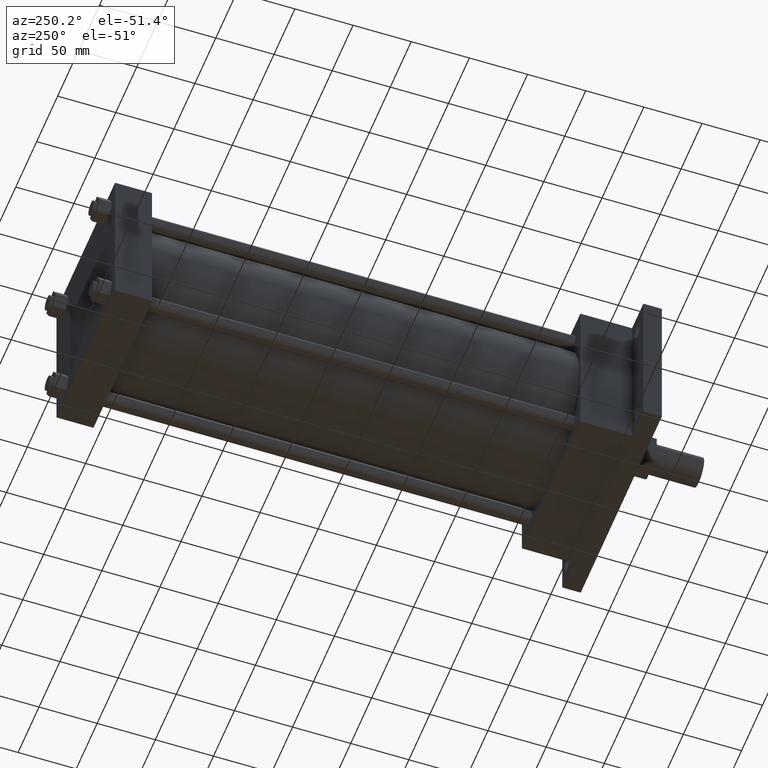
[diagram: clean part render]
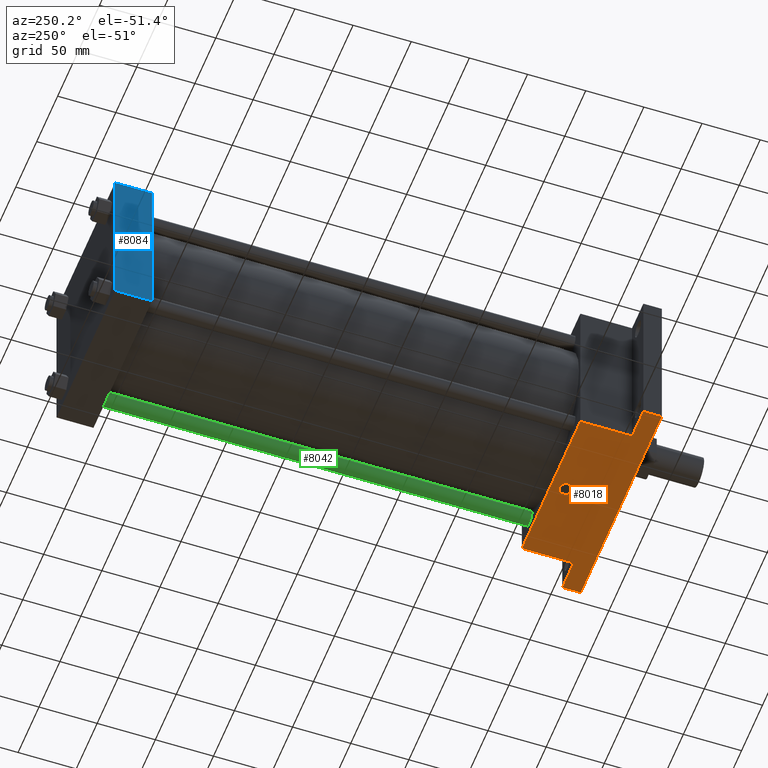
[diagram: same view with three faces highlighted in distinct colors, each labeled with its STEP entity id]
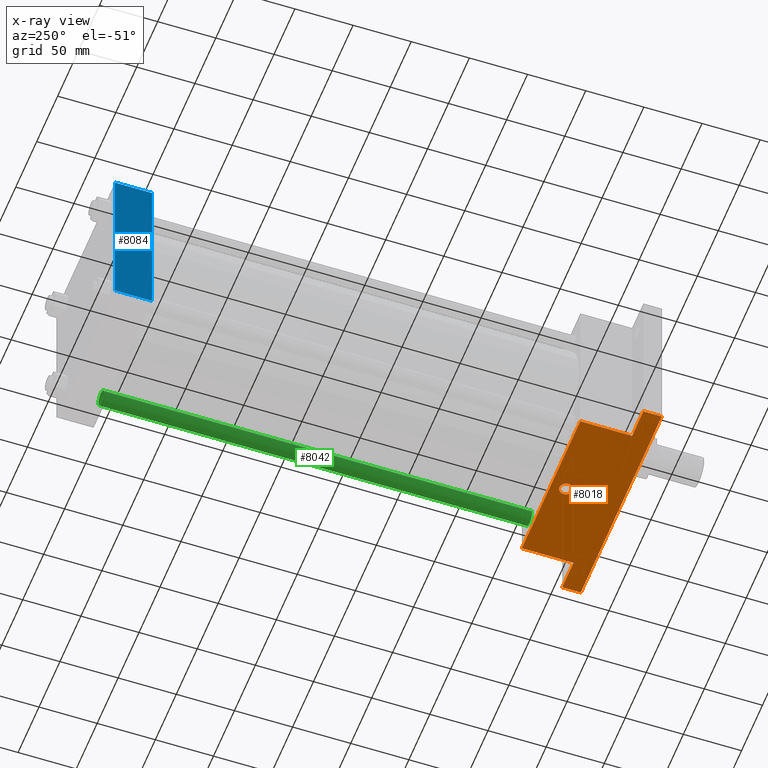
[diagram: x-ray of the same camera — body ghosted, the three highlighted faces saturated]
A machine part, auxiliary view with three faces highlighted in distinct colors.
The next image is the same camera in x-ray (body ghosted, the three faces saturated) — at least one of them is partly hidden behind the body in this view.
Their STEP definitions:

[orange] entity #8018 — the highlighted planar face has unit normal (0, 0, -1).
#483=EDGE_CURVE('',#488,#489,#484,.T.);
#484=LINE('',#485,#486);
#485=CARTESIAN_POINT('',(-9.683750000E+001,4.127500000E+001,-6.985000000E+001));
#486=VECTOR('',#487,1.0E+000);
#487=DIRECTION('',(1.0E+000,0.0E+000,0.0E+000));
#488=VERTEX_POINT('',#490);
#489=VERTEX_POINT('',#491);
#490=CARTESIAN_POINT('',(6.985000000E+001,4.127500000E+001,-6.985000000E+001));
#491=CARTESIAN_POINT('',(9.683750000E+001,4.127500000E+001,-6.985000000E+001));
#516=FACE_OUTER_BOUND('',#518,.T.);
#517=FACE_BOUND('',#519,.T.);
#518=EDGE_LOOP('',(#520,#521,#522,#523,#524,#525,#526,#527));
#519=EDGE_LOOP('',(#571));
#520=ORIENTED_EDGE('',*,*,#528,.T.);
#521=ORIENTED_EDGE('',*,*,#535,.F.);
#522=ORIENTED_EDGE('',*,*,#542,.F.);
#523=ORIENTED_EDGE('',*,*,#549,.T.);
#524=ORIENTED_EDGE('',*,*,#552,.F.);
#525=ORIENTED_EDGE('',*,*,#559,.T.);
#526=ORIENTED_EDGE('',*,*,#566,.T.);
#527=ORIENTED_EDGE('',*,*,#483,.T.);
#528=EDGE_CURVE('',#489,#533,#529,.T.);
#529=LINE('',#530,#531);
#530=CARTESIAN_POINT('',(9.683750000E+001,4.127500000E+001,-6.985000000E+001));
#531=VECTOR('',#532,1.0E+000);
#532=DIRECTION('',(0.0E+000,-1.0E+000,0.0E+000));
#533=VERTEX_POINT('',#534);
#534=CARTESIAN_POINT('',(9.683750000E+001,2.540000000E+001,-6.985000000E+001));
#535=EDGE_CURVE('',#540,#533,#536,.T.);
#536=LINE('',#537,#538);
#537=CARTESIAN_POINT('',(-9.683750000E+001,2.540000000E+001,-6.985000000E+001));
#538=VECTOR('',#539,1.0E+000);
#539=DIRECTION('',(1.0E+000,0.0E+000,0.0E+000));
#540=VERTEX_POINT('',#541);
#541=CARTESIAN_POINT('',(-9.683750000E+001,2.540000000E+001,-6.985000000E+001));
#542=EDGE_CURVE('',#547,#540,#543,.T.);
#543=LINE('',#544,#545);
#544=CARTESIAN_POINT('',(-9.683750000E+001,4.127500000E+001,-6.985000000E+001));
#545=VECTOR('',#546,1.0E+000);
#546=DIRECTION('',(0.0E+000,-1.0E+000,0.0E+000));
#547=VERTEX_POINT('',#548);
#548=CARTESIAN_POINT('',(-9.683750000E+001,4.127500000E+001,-6.985000000E+001));
#549=EDGE_CURVE('',#547,#550,#484,.T.);
#550=VERTEX_POINT('',#551);
#551=CARTESIAN_POINT('',(-6.985000000E+001,4.127500000E+001,-6.985000000E+001));
#552=EDGE_CURVE('',#557,#550,#553,.T.);
#553=LINE('',#554,#555);
#554=CARTESIAN_POINT('',(-6.985000000E+001,8.572500000E+001,-6.985000000E+001));
#555=VECTOR('',#556,1.0E+000);
#556=DIRECTION('',(0.0E+000,-1.0E+000,0.0E+000));
#557=VERTEX_POINT('',#558);
#558=CARTESIAN_POINT('',(-6.985000000E+001,8.572500000E+001,-6.985000000E+001));
#559=EDGE_CURVE('',#557,#564,#560,.T.);
#560=LINE('',#561,#562);
#561=CARTESIAN_POINT('',(-6.985000000E+001,8.572500000E+001,-6.985000000E+001));
#562=VECTOR('',#563,1.0E+000);
#563=DIRECTION('',(1.0E+000,0.0E+000,0.0E+000));
#564=VERTEX_POINT('',#565);
#565=CARTESIAN_POINT('',(6.985000000E+001,8.572500000E+001,-6.985000000E+001));
#566=EDGE_CURVE('',#564,#488,#567,.T.);
#567=LINE('',#568,#569);
#568=CARTESIAN_POINT('',(6.985000000E+001,8.572500000E+001,-6.985000000E+001));
#569=VECTOR('',#570,1.0E+000);
#570=DIRECTION('',(0.0E+000,-1.0E+000,0.0E+000));
#571=ORIENTED_EDGE('',*,*,#572,.T.);
#572=EDGE_CURVE('',#578,#578,#573,.T.);
#573=CIRCLE('',#574,5.556250000E+000);
#574=AXIS2_PLACEMENT_3D('',#575,#576,#577);
#575=CARTESIAN_POINT('',(0.000000000E+000,7.302500000E+001,-6.985000000E+001));
#576=DIRECTION('',(0.0E+000,0.0E+000,1.0E+000));
#577=DIRECTION('',(1.0E+000,0.0E+000,0.0E+000));
#578=VERTEX_POINT('',#579);
#579=CARTESIAN_POINT('',(5.556250000E+000,7.302500000E+001,-6.985000000E+001));
#580=PLANE('',#581);
#581=AXIS2_PLACEMENT_3D('',#582,#583,#584);
#582=CARTESIAN_POINT('',(-9.683750000E+001,4.127500000E+001,-6.985000000E+001));
#583=DIRECTION('',(0.0E+000,0.0E+000,-1.0E+000));
#584=DIRECTION('',(-1.0E+000,0.0E+000,0.0E+000));
#8018=ADVANCED_FACE('',(#516,#517),#580,.T.);

[blue] entity #8084 — the highlighted planar face has unit normal (-1, 0, 0).
#2244=VERTEX_POINT('',#2246);
#2246=CARTESIAN_POINT('',(-6.985000000E+001,4.857750000E+002,-6.985000000E+001));
#2248=EDGE_CURVE('',#2253,#2244,#2249,.T.);
#2249=LINE('',#2250,#2251);
#2250=CARTESIAN_POINT('',(-6.985000000E+001,4.857750000E+002,6.985000000E+001));
#2251=VECTOR('',#2252,1.0E+000);
#2252=DIRECTION('',(0.0E+000,0.0E+000,-1.0E+000));
#2253=VERTEX_POINT('',#2254);
#2254=CARTESIAN_POINT('',(-6.985000000E+001,4.857750000E+002,6.985000000E+001));
#2417=VERTEX_POINT('',#2419);
#2419=CARTESIAN_POINT('',(-6.985000000E+001,4.540250000E+002,-6.985000000E+001));
#2433=VERTEX_POINT('',#2434);
#2434=CARTESIAN_POINT('',(-6.985000000E+001,4.540250000E+002,6.985000000E+001));
#2435=EDGE_CURVE('',#2433,#2417,#2436,.T.);
#2436=LINE('',#2437,#2438);
#2437=CARTESIAN_POINT('',(-6.985000000E+001,4.540250000E+002,6.985000000E+001));
#2438=VECTOR('',#2439,1.0E+000);
#2439=DIRECTION('',(0.0E+000,0.0E+000,-1.0E+000));
#2462=EDGE_CURVE('',#2244,#2417,#2463,.T.);
#2463=LINE('',#2464,#2465);
#2464=CARTESIAN_POINT('',(-6.985000000E+001,4.857750000E+002,-6.985000000E+001));
#2465=VECTOR('',#2466,1.0E+000);
#2466=DIRECTION('',(0.0E+000,-1.0E+000,0.0E+000));
#2499=EDGE_CURVE('',#2253,#2433,#2500,.T.);
#2500=LINE('',#2501,#2502);
#2501=CARTESIAN_POINT('',(-6.985000000E+001,4.857750000E+002,6.985000000E+001));
#2502=VECTOR('',#2503,1.0E+000);
#2503=DIRECTION('',(0.0E+000,-1.0E+000,0.0E+000));
#2518=FACE_OUTER_BOUND('',#2520,.T.);
#2519=FACE_BOUND('',#2521,.T.);
#2520=EDGE_LOOP('',(#2522,#2523,#2524,#2525));
#2521=EDGE_LOOP('',(#2526));
#2522=ORIENTED_EDGE('',*,*,#2435,.F.);
#2523=ORIENTED_EDGE('',*,*,#2499,.F.);
#2524=ORIENTED_EDGE('',*,*,#2248,.T.);
#2525=ORIENTED_EDGE('',*,*,#2462,.T.);
#2526=ORIENTED_EDGE('',*,*,#2527,.T.);
#2527=EDGE_CURVE('',#2533,#2533,#2528,.T.);
#2528=CIRCLE('',#2529,5.556250000E+000);
#2529=AXIS2_PLACEMENT_3D('',#2530,#2531,#2532);
#2530=CARTESIAN_POINT('',(-6.985000000E+001,4.667250000E+002,0.000000000E+000));
#2531=DIRECTION('',(1.0E+000,0.0E+000,0.0E+000));
#2532=DIRECTION('',(0.0E+000,-1.0E+000,0.0E+000));
#2533=VERTEX_POINT('',#2534);
#2534=CARTESIAN_POINT('',(-6.985000000E+001,4.611687500E+002,0.000000000E+000));
#2535=PLANE('',#2536);
#2536=AXIS2_PLACEMENT_3D('',#2537,#2538,#2539);
#2537=CARTESIAN_POINT('',(-6.985000000E+001,4.857750000E+002,6.985000000E+001));
#2538=DIRECTION('',(-1.0E+000,0.0E+000,0.0E+000));
#2539=DIRECTION('',(0.0E+000,0.0E+000,1.0E+000));
#8084=ADVANCED_FACE('',(#2518,#2519),#2535,.T.);

[green] entity #8042 — the highlighted cylindrical surface (bore or boss wall) has radius 6.35 mm, axis along (0, -1, 0).
#871=EDGE_CURVE('',#877,#877,#872,.T.);
#872=CIRCLE('',#873,6.350000000E+000);
#873=AXIS2_PLACEMENT_3D('',#874,#875,#876);
#874=CARTESIAN_POINT('',(5.207000000E+001,8.572500000E+001,-5.207000000E+001));
#875=DIRECTION('',(0.0E+000,1.0E+000,0.0E+000));
#876=DIRECTION('',(1.0E+000,0.0E+000,0.0E+000));
#877=VERTEX_POINT('',#878);
#878=CARTESIAN_POINT('',(5.842000000E+001,8.572500000E+001,-5.207000000E+001));
#1119=FACE_OUTER_BOUND('',#1121,.T.);
#1120=FACE_BOUND('',#1122,.T.);
#1121=EDGE_LOOP('',(#1123));
#1122=EDGE_LOOP('',(#1124));
#1123=ORIENTED_EDGE('',*,*,#1173,.F.);
#1124=ORIENTED_EDGE('',*,*,#871,.T.);
#1125=CYLINDRICAL_SURFACE('',#1126,6.350000000E+000);
#1126=AXIS2_PLACEMENT_3D('',#1127,#1128,#1129);
#1127=CARTESIAN_POINT('',(5.207000000E+001,4.540250000E+002,-5.207000000E+001));
#1128=DIRECTION('',(0.0E+000,-1.0E+000,0.0E+000));
#1129=DIRECTION('',(0.0E+000,0.0E+000,-1.0E+000));
#1173=EDGE_CURVE('',#1179,#1179,#1174,.T.);
#1174=CIRCLE('',#1175,6.350000000E+000);
#1175=AXIS2_PLACEMENT_3D('',#1176,#1177,#1178);
#1176=CARTESIAN_POINT('',(5.207000000E+001,4.540250000E+002,-5.207000000E+001));
#1177=DIRECTION('',(0.0E+000,1.0E+000,0.0E+000));
#1178=DIRECTION('',(1.0E+000,0.0E+000,0.0E+000));
#1179=VERTEX_POINT('',#1180);
#1180=CARTESIAN_POINT('',(5.842000000E+001,4.540250000E+002,-5.207000000E+001));
#8042=ADVANCED_FACE('',(#1119,#1120),#1125,.T.);